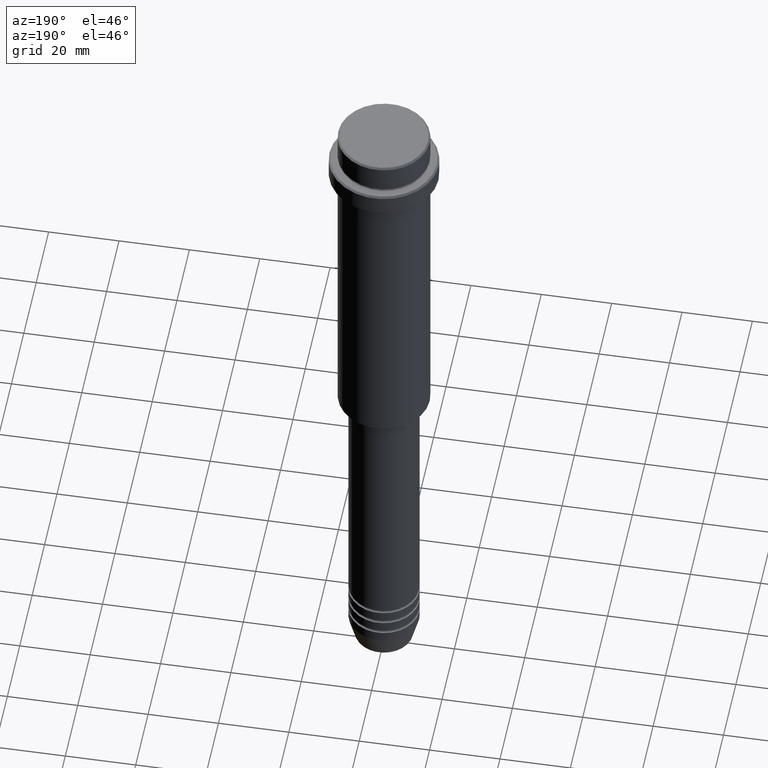
[diagram: clean part render]
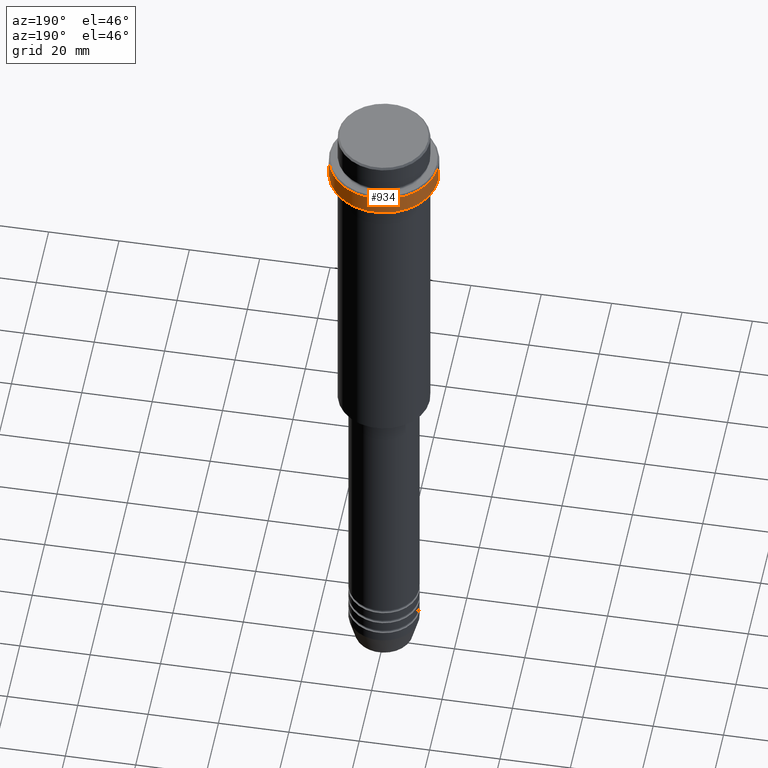
[diagram: same view with one face highlighted and labeled with its STEP entity id]
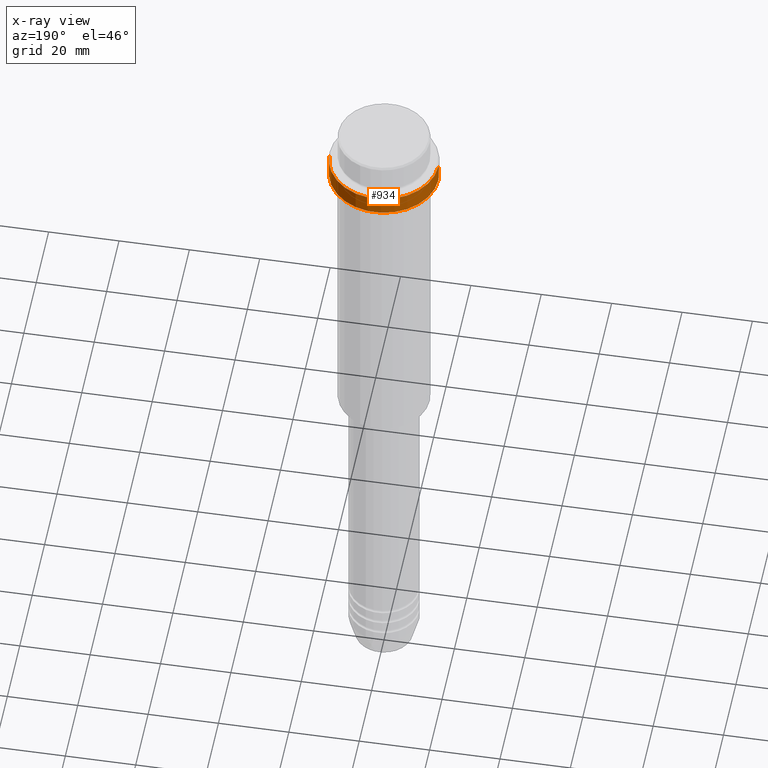
[diagram: x-ray of the same camera — body ghosted, the highlighted face saturated]
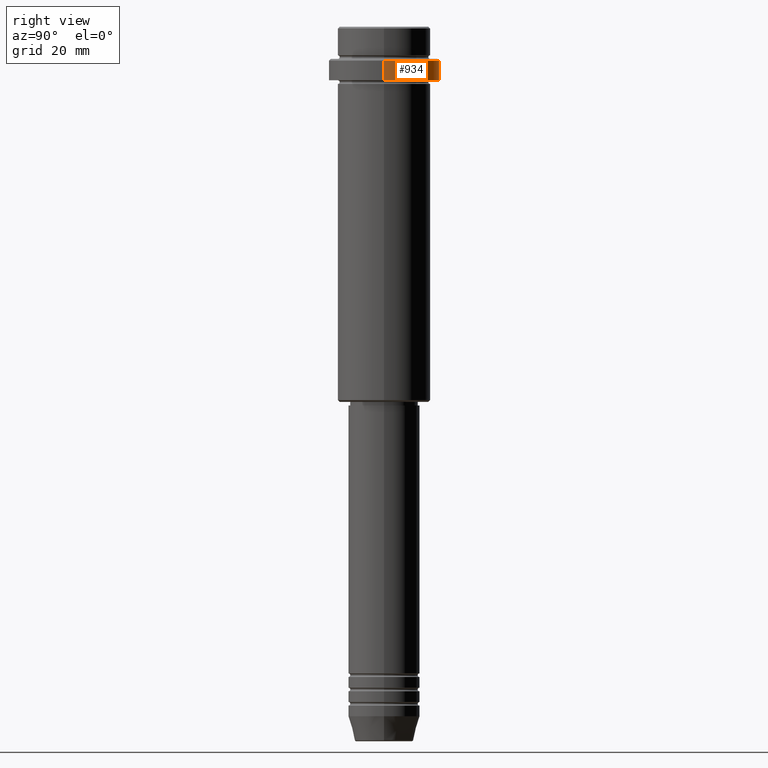
[diagram: same view with one face highlighted and labeled with its STEP entity id]
A machine part, auxiliary view. The second image highlights one B-rep face of the part: STEP entity #934.
The next image is the same camera in x-ray: the body ghosted, the highlighted face saturated — about 0% of this face is hidden behind the body in this view.
A second angle (right view) of the same face is appended — the face is thin or edge-on in the first view.
In plain terms, the highlighted cylindrical surface (partial cylindrical patch) has radius 15.5 mm, axis along (-0, -0, 1).
Its self-contained STEP definition (entity closure, byte-faithful):
#34 = VERTEX_POINT ( 'NONE', #291 ) ;
#46 = VERTEX_POINT ( 'NONE', #511 ) ;
#86 = DIRECTION ( 'NONE',  ( -0.000000000000000000, -0.000000000000000000, 1.000000000000000000 ) ) ;
#88 = AXIS2_PLACEMENT_3D ( 'NONE', #1405, #86, #1165 ) ;
#100 = LINE ( 'NONE', #667, #312 ) ;
#101 = DIRECTION ( 'NONE',  ( -0.000000000000000000, -0.000000000000000000, 1.000000000000000000 ) ) ;
#151 = CARTESIAN_POINT ( 'NONE',  ( -15.50000000000000000, 1.898202538678397557E-15, -9.499999999999984013 ) ) ;
#179 = CARTESIAN_POINT ( 'NONE',  ( 0.000000000000000000, 0.000000000000000000, -15.00000000000000000 ) ) ;
#211 = CARTESIAN_POINT ( 'NONE',  ( 15.50000000000000000, 0.000000000000000000, 0.000000000000000000 ) ) ;
#291 = CARTESIAN_POINT ( 'NONE',  ( 15.50000000000000000, 0.000000000000000000, -9.499999999999984013 ) ) ;
#312 = VECTOR ( 'NONE', #1213, 1000.000000000000000 ) ;
#317 = EDGE_CURVE ( 'NONE', #345, #34, #1276, .T. ) ;
#319 = EDGE_CURVE ( 'NONE', #675, #34, #1305, .T. ) ;
#337 = CARTESIAN_POINT ( 'NONE',  ( 15.50000000000000000, 0.000000000000000000, -15.00000000000000000 ) ) ;
#345 = VERTEX_POINT ( 'NONE', #151 ) ;
#407 = FACE_OUTER_BOUND ( 'NONE', #1379, .T. ) ;
#475 = AXIS2_PLACEMENT_3D ( 'NONE', #179, #522, #956 ) ;
#511 = CARTESIAN_POINT ( 'NONE',  ( -15.50000000000000000, 1.898202538678397557E-15, -15.00000000000000000 ) ) ;
#522 = DIRECTION ( 'NONE',  ( -0.000000000000000000, -0.000000000000000000, 1.000000000000000000 ) ) ;
#588 = VECTOR ( 'NONE', #101, 1000.000000000000000 ) ;
#596 = ORIENTED_EDGE ( 'NONE', *, *, #943, .T. ) ;
#635 = EDGE_CURVE ( 'NONE', #46, #345, #100, .T. ) ;
#646 = CARTESIAN_POINT ( 'NONE',  ( 0.000000000000000000, 0.000000000000000000, -9.499999999999984013 ) ) ;
#667 = CARTESIAN_POINT ( 'NONE',  ( -15.50000000000000000, 1.898202538678397557E-15, 0.000000000000000000 ) ) ;
#675 = VERTEX_POINT ( 'NONE', #337 ) ;
#726 = CYLINDRICAL_SURFACE ( 'NONE', #88, 15.50000000000000000 ) ;
#861 = DIRECTION ( 'NONE',  ( 1.000000000000000000, 0.000000000000000000, 0.000000000000000000 ) ) ;
#930 = ORIENTED_EDGE ( 'NONE', *, *, #317, .T. ) ;
#934 = ADVANCED_FACE ( 'NONE', ( #407 ), #726, .T. ) ;
#943 = EDGE_CURVE ( 'NONE', #675, #46, #1116, .T. ) ;
#956 = DIRECTION ( 'NONE',  ( 1.000000000000000000, 0.000000000000000000, 0.000000000000000000 ) ) ;
#979 = DIRECTION ( 'NONE',  ( 0.000000000000000000, 0.000000000000000000, -1.000000000000000000 ) ) ;
#1114 = AXIS2_PLACEMENT_3D ( 'NONE', #646, #979, #861 ) ;
#1116 = CIRCLE ( 'NONE', #475, 15.50000000000000000 ) ;
#1165 = DIRECTION ( 'NONE',  ( 1.000000000000000000, 0.000000000000000000, 0.000000000000000000 ) ) ;
#1213 = DIRECTION ( 'NONE',  ( -0.000000000000000000, -0.000000000000000000, 1.000000000000000000 ) ) ;
#1225 = ORIENTED_EDGE ( 'NONE', *, *, #635, .T. ) ;
#1276 = CIRCLE ( 'NONE', #1114, 15.50000000000000000 ) ;
#1305 = LINE ( 'NONE', #211, #588 ) ;
#1356 = ORIENTED_EDGE ( 'NONE', *, *, #319, .F. ) ;
#1379 = EDGE_LOOP ( 'NONE', ( #596, #1225, #930, #1356 ) ) ;
#1405 = CARTESIAN_POINT ( 'NONE',  ( 0.000000000000000000, 0.000000000000000000, 0.000000000000000000 ) ) ;